MODEL slx_9a36087346cd
KIND model
CONFIG AbsTol = auto
CONFIG EnableMultiTasking = off
CONFIG FixedStep = dt
CONFIG MaxStep = auto
CONFIG MinStep = auto
CONFIG RelTol = 1e-3
CONFIG SampleTimeConstraint = Unconstrained
CONFIG SolverName = FixedStepAuto
CONFIG StartTime = 0.0
CONFIG StopTime = T
BLOCK [Clock] Clock
BLOCK [Scope] Control Input
  Floating = on
  NumInputPorts = 1
  ScopeSpecificationString = Simulink.scopes.TimeScopeBlockCfg('CurrentConfiguration', extmgr.ConfigurationSet(extmgr.Configuration('Core','General UI',true),extmgr.Configuration('Core','Source UI',true),extmgr.Configuration('Sources','WiredSimulink',true,'DataLoggingVariableName','ScopeData2'),extmgr.Configuration('Visuals','Time Domain',true,'SerializedDisplays',{struct('MinYLimReal','-29.0827','MaxYLimReal','28.56414','YLa...<+2236ch>
BLOCK [SubSystem] Main Controller
BLOCK [Outport] Main Controller/Control Input
BLOCK [Demux] Main Controller/Demux
  Outputs = 2
BLOCK [InitialCondition] Main Controller/IC
  Value = u
BLOCK [InitialCondition] Main Controller/IC1
  NameLocation = top
  Value = W_init
BLOCK [InitialCondition] Main Controller/IC2
  NameLocation = top
  Value = X_init
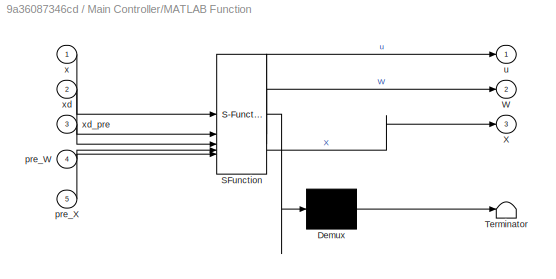
BLOCK [SubSystem] Main Controller/MATLAB Function
  ErrorFcn = Stateflow.Translate.translate
  PermitHierarchicalResolution = ExplicitOnly
  SFBlockType = MATLAB Function
  SystemSampleTime = ctrl_dt
  TreatAsAtomicUnit = on
BLOCK [Demux] Main Controller/MATLAB Function/ Demux 
  Outputs = 1
BLOCK [S-Function] Main Controller/MATLAB Function/ SFunction 
  EnableBusSupport = on
  FunctionName = sf_sfun
  Parameters = ctrl_dt
  PortCounts = [5 4]
  SFcnIsStateOwnerBlock = off
  SFunctionDeploymentMode = off
  Tag = Stateflow S-Function 7
BLOCK [Terminator] Main Controller/MATLAB Function/ Terminator 
BLOCK [Outport] Main Controller/MATLAB Function/W
  Port = 2
BLOCK [Outport] Main Controller/MATLAB Function/X
  Port = 3
BLOCK [Inport] Main Controller/MATLAB Function/pre_W
  Port = 4
BLOCK [Inport] Main Controller/MATLAB Function/pre_X
  Port = 5
BLOCK [Outport] Main Controller/MATLAB Function/u
BLOCK [Inport] Main Controller/MATLAB Function/x
BLOCK [Inport] Main Controller/MATLAB Function/xd
  Port = 2
BLOCK [Inport] Main Controller/MATLAB Function/xd_pre
  Port = 3
BLOCK [Memory] Main Controller/Memory
BLOCK [Memory] Main Controller/Memory1
  NameLocation = top
BLOCK [Memory] Main Controller/Memory2
  NameLocation = top
BLOCK [Mux] Main Controller/Mux
  DisplayOption = bar
  Inputs = 2
BLOCK [Inport] Main Controller/Reference
  Port = 2
BLOCK [Inport] Main Controller/State Feedback
BLOCK [SubSystem] Reference Generation
BLOCK [Demux] Reference Generation/Demux
BLOCK [Mux] Reference Generation/Mux
  DisplayOption = bar
BLOCK [Outport] Reference Generation/Reference
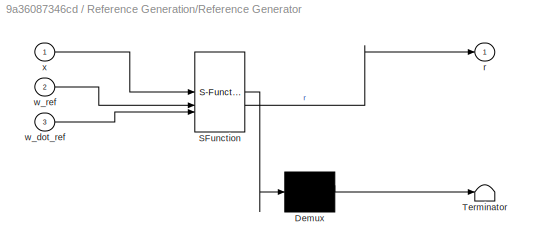
BLOCK [SubSystem] Reference Generation/Reference Generator
  ErrorFcn = Stateflow.Translate.translate
  PermitHierarchicalResolution = ExplicitOnly
  SFBlockType = MATLAB Function
  TreatAsAtomicUnit = on
BLOCK [Demux] Reference Generation/Reference Generator/ Demux 
  Outputs = 1
BLOCK [S-Function] Reference Generation/Reference Generator/ SFunction 
  EnableBusSupport = on
  FunctionName = sf_sfun
  PortCounts = [3 2]
  SFcnIsStateOwnerBlock = off
  SFunctionDeploymentMode = off
  Tag = Stateflow S-Function 2
BLOCK [Terminator] Reference Generation/Reference Generator/ Terminator 
BLOCK [Outport] Reference Generation/Reference Generator/r
BLOCK [Inport] Reference Generation/Reference Generator/w_dot_ref
  Port = 3
BLOCK [Inport] Reference Generation/Reference Generator/w_ref
  Port = 2
BLOCK [Inport] Reference Generation/Reference Generator/x
BLOCK [Inport] Reference Generation/State Feedback
BLOCK [Inport] Reference Generation/Time
  Port = 2
BLOCK [SubSystem] Reference Generation/w reference
  ErrorFcn = Stateflow.Translate.translate
  PermitHierarchicalResolution = ExplicitOnly
  SFBlockType = MATLAB Function
  TreatAsAtomicUnit = on
BLOCK [Demux] Reference Generation/w reference/ Demux 
  Outputs = 1
BLOCK [S-Function] Reference Generation/w reference/ SFunction 
  EnableBusSupport = on
  FunctionName = sf_sfun
  PortCounts = [1 3]
  SFcnIsStateOwnerBlock = off
  SFunctionDeploymentMode = off
  Tag = Stateflow S-Function 3
BLOCK [Terminator] Reference Generation/w reference/ Terminator 
BLOCK [Inport] Reference Generation/w reference/t
BLOCK [Outport] Reference Generation/w reference/w_dot_ref
  Port = 2
BLOCK [Outport] Reference Generation/w reference/w_ref
BLOCK [Scope] State vs Ref
  Floating = on
  NumInputPorts = 1
  ScopeSpecificationString = Simulink.scopes.TimeScopeBlockCfg('CurrentConfiguration', extmgr.ConfigurationSet(extmgr.Configuration('Core','General UI',true),extmgr.Configuration('Core','Source UI',true),extmgr.Configuration('Sources','WiredSimulink',true,'DataLoggingVariableName','ScopeData1'),extmgr.Configuration('Visuals','Time Domain',true,'SerializedDisplays',{struct('MinYLimReal','-5.13885','MaxYLimReal','2.4972','YLabe...<+2234ch>
BLOCK [SubSystem] System
BLOCK [Inport] System/Control Input
BLOCK [Demux] System/Demux
BLOCK [Constant] System/Initial State
  Value = x
BLOCK [Integrator] System/Integrator
  InitialConditionSource = external
BLOCK [Mux] System/Mux
  DisplayOption = bar
BLOCK [Outport] System/State Feedback
BLOCK [SubSystem] System/System Gradient Caculator
  ErrorFcn = Stateflow.Translate.translate
  PermitHierarchicalResolution = ExplicitOnly
  SFBlockType = MATLAB Function
  TreatAsAtomicUnit = on
BLOCK [Demux] System/System Gradient Caculator/ Demux 
  Outputs = 1
BLOCK [S-Function] System/System Gradient Caculator/ SFunction 
  EnableBusSupport = on
  FunctionName = sf_sfun
  PortCounts = [2 2]
  SFcnIsStateOwnerBlock = off
  SFunctionDeploymentMode = off
  Tag = Stateflow S-Function 1
BLOCK [Terminator] System/System Gradient Caculator/ Terminator 
BLOCK [Outport] System/System Gradient Caculator/grad
BLOCK [Inport] System/System Gradient Caculator/u
  Port = 2
BLOCK [Inport] System/System Gradient Caculator/x
ANNOTATION (root): MAIN SIMULATION Created by Myeongseok Ryu <email> 21.Jul.2025
ANNOTATION Main Controller: Main Controller
ANNOTATION Reference Generation: Reference Generator
ANNOTATION System: System Dynamics
ANNOTATION System: The initial state is loaded from MATLAB workspace.
LINE Clock:1 -> Reference Generation:2
LINE Main Controller/Demux:1 -> Main Controller/Mux:1
LINE Main Controller/Demux:2 -> Main Controller/Mux:2
LINE Main Controller/IC1:1 -> Main Controller/Memory1:1
LINE Main Controller/IC2:1 -> Main Controller/Memory2:1
LINE Main Controller/IC:1 -> Main Controller/Demux:1
LINE Main Controller/MATLAB Function:1 -> Main Controller/IC:1
LINE Main Controller/MATLAB Function:2 -> Main Controller/IC1:1
LINE Main Controller/MATLAB Function:3 -> Main Controller/IC2:1
LINE Main Controller/Memory1:1 -> Main Controller/MATLAB Function:4
LINE Main Controller/Memory2:1 -> Main Controller/MATLAB Function:5
LINE Main Controller/Memory:1 -> Main Controller/MATLAB Function:3
LINE Main Controller/Mux:1 -> Main Controller/Control Input:1
NET Main Controller/Reference:1 -> Main Controller/MATLAB Function:2, Main Controller/Memory:1
LINE Main Controller/State Feedback:1 -> Main Controller/MATLAB Function:1
LINE Main Controller:1 -> System:1
LINE Reference Generation/Demux:1 -> Reference Generation/Mux:1
LINE Reference Generation/Demux:2 -> Reference Generation/Mux:2
LINE Reference Generation/Demux:3 -> Reference Generation/Mux:3
LINE Reference Generation/Demux:4 -> Reference Generation/Mux:4
LINE Reference Generation/Mux:1 -> Reference Generation/Reference:1
LINE Reference Generation/Reference Generator:1 -> Reference Generation/Demux:1
LINE Reference Generation/State Feedback:1 -> Reference Generation/Reference Generator:1
LINE Reference Generation/Time:1 -> Reference Generation/w reference:1
LINE Reference Generation/w reference:1 -> Reference Generation/Reference Generator:2
LINE Reference Generation/w reference:2 -> Reference Generation/Reference Generator:3
LINE Reference Generation:1 -> Main Controller:2
LINE System/Control Input:1 -> System/System Gradient Caculator:2
LINE System/Demux:1 -> System/Mux:1
LINE System/Demux:2 -> System/Mux:2
LINE System/Demux:3 -> System/Mux:3
LINE System/Demux:4 -> System/Mux:4
LINE System/Initial State:1 -> System/Integrator:2
NET System/Integrator:1 -> System/Demux:1, System/System Gradient Caculator:1
LINE System/Mux:1 -> System/State Feedback:1
LINE System/System Gradient Caculator:1 -> System/Integrator:1
NET System:1 -> Main Controller:1, Reference Generation:1
note: NET lines group one-source signal fan-out (src -> all destinations, sorted); 1:1 wires keep LINE
CHART System/System Gradient Caculator states=1 transitions=1
  STATE_LABEL 'eML_blk_kernel()'
  STATE_LABEL 'SCRIPT:\nfunction grad = fcn(x, u)\n    th = x(1);  % theta\n    w = x(2);  % theta dot\n    ia = x(3);  % Ia\n    ib = x(4);  % Ib\n\n    trq_d = 0;\n    \n    %%\n    % L = .66e-3;    % Inductance (mH)\n    L = .66;\n    R = 0.251;     % Resistance (Ohm)\n    J = 3.24e-5;   % Inertia (kg.m^2)\n    Phi = 16.8e-3; % Flux (Wb)\n    P = 4;         % Pole pairs\n    fv = 2e-3;     % Viscous friction (N.m.s/rad)\n    ...<+250ch>'
CHART Reference Generation/Reference Generator states=1 transitions=1
  STATE_LABEL 'eML_blk_kernel()'
  STATE_LABEL 'SCRIPT:\nfunction r = fcn(x, w_ref, w_dot_ref)\n    th = x(1);  % theta\n    w = x(2);  % theta dot\n    ia = x(3);  % Ia\n    ib = x(4);  % Ib\n\n    %%\n    % L = .66e-3;    % Inductance (mH)\n    L = .66;\n    R = 0.251;     % Resistance (Ohm)\n    J = 3.24e-5;   % Inertia (kg.m^2)\n    Phi = 16.8e-3; % Flux (Wb)\n    P = 4;         % Pole pairs\n    fv = 2e-3;     % Viscous friction (N.m.s/rad)\n    est_tau_...<+293ch>'
CHART Reference Generation/w reference states=1 transitions=1
  STATE_LABEL 'eML_blk_kernel()'
  STATE_LABEL 'SCRIPT:\nfunction [w_ref, w_dot_ref]  = fcn(t)\n\n    %%\n    start_t = 1;\n    duration = 1;\n    end_value = 300;\n\n    %%\n    if t<start_t\n        w_ref = 0;\n        w_dot_ref = 0;\n    elseif t<start_t+duration\n        w_ref = end_value/duration * (t-start_t);\n        w_dot_ref = end_value/duration;\n    else\n        w_ref = end_value;\n        w_dot_ref = 0;\n    end\n\nend'
CHART Main Controller/MATLAB Function states=1 transitions=1
  STATE_LABEL 'eML_blk_kernel()'
  STATE_LABEL 'SCRIPT:\nfunction [u, W, X] = fcn(x, xd, xd_pre, ctrl_dt, pre_W, pre_X)\n    %%\n    % x = [th, w, ia, ib]\n    \n%%\n    dt = ctrl_dt;\n    R = diag([1, 1])*1e-3;\n    inv_R = inv(R);  % input weight matrix\n\n    %%\n    L = .66;\n    R = 0.251;     % Resistance (Ohm)\n    J = 3.24e-5;   % Inertia (kg.m^2)\n    Phi = 16.8e-3; % Flux (Wb)\n    P = 4;         % Pole pairs\n    fv = 2e-3;     % Viscous friction (N...<+1927ch>'
CHART  states=0 transitions=0
CHART  states=0 transitions=0
CHART  states=0 transitions=0
CHART  states=0 transitions=0
